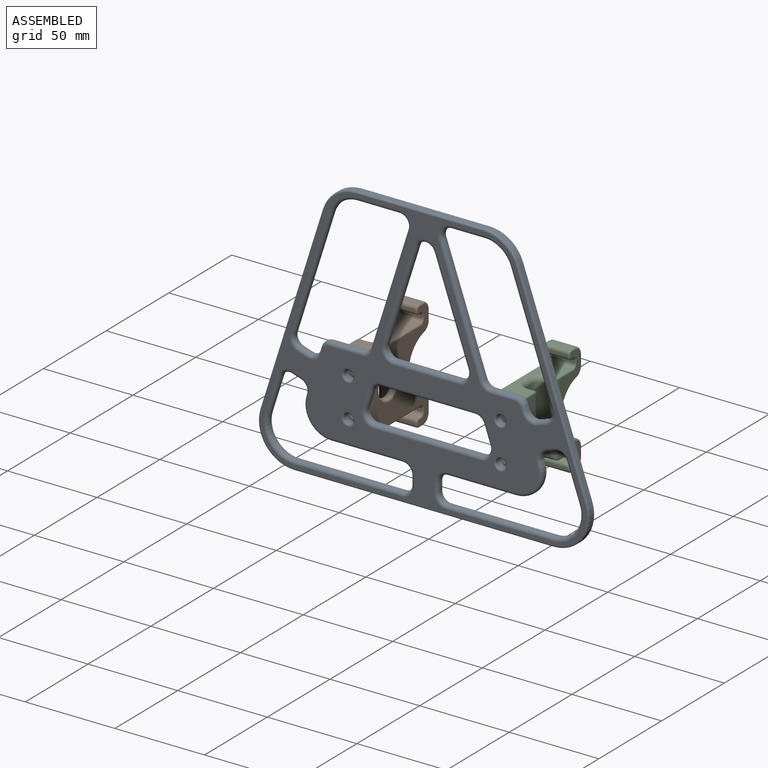
[diagram: assembled view]
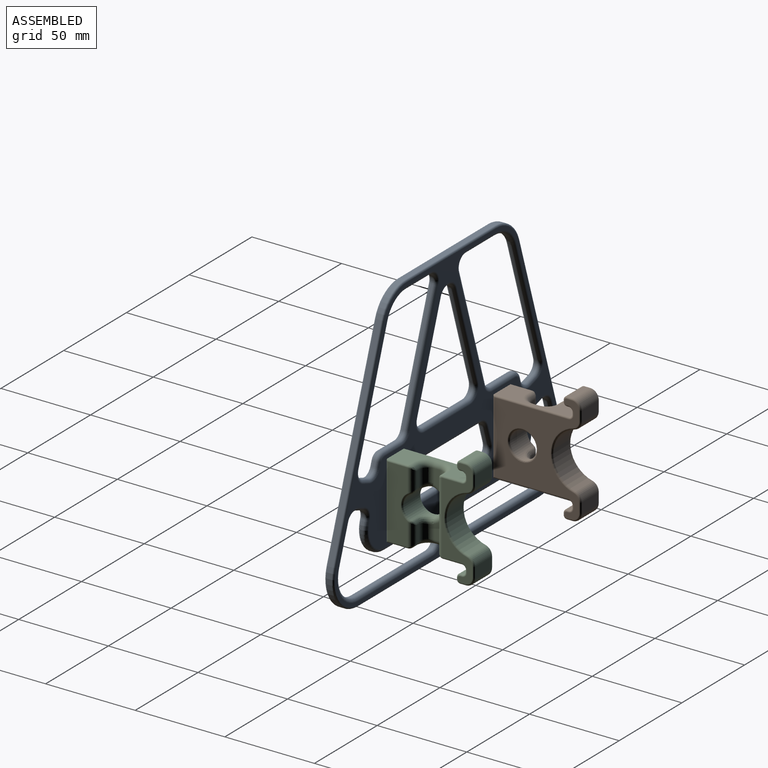
[diagram: assembled view, second angle]
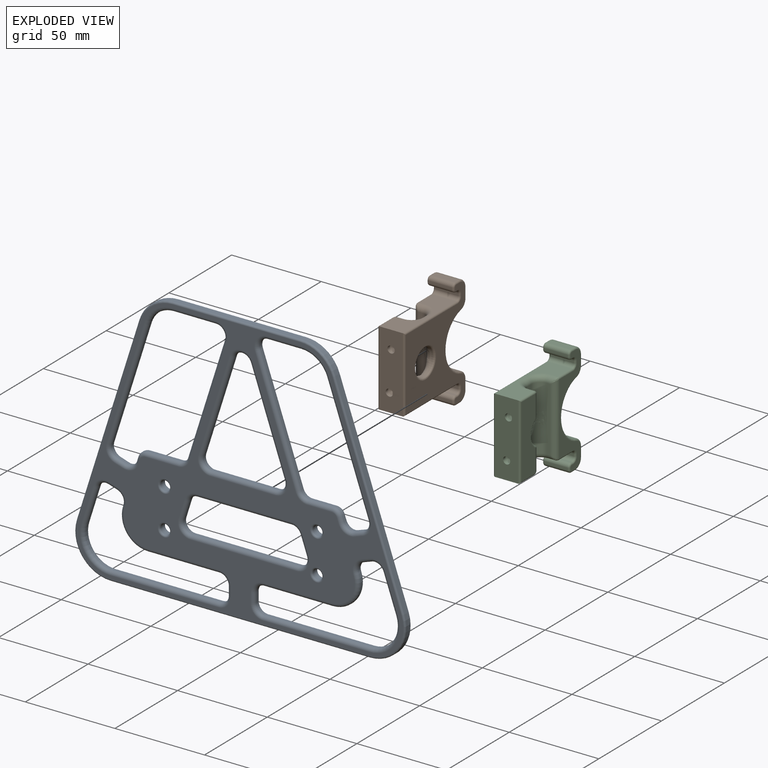
[diagram: exploded view]
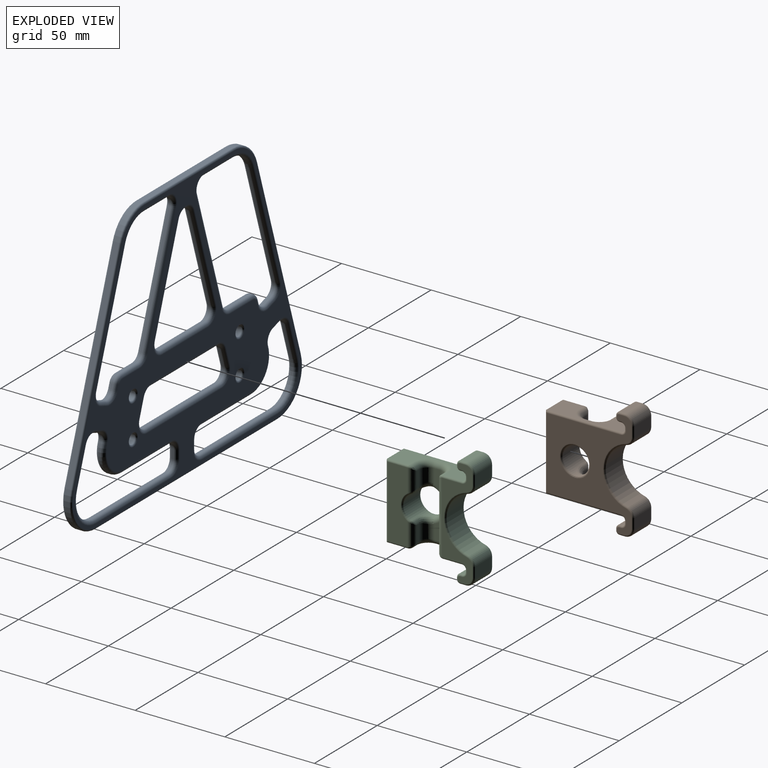
[diagram: exploded view, second angle]
ASSEMBLY  parts=3 mates=2
PART A: 224 faces, bbox 187.8x5x153.3 mm
  f0: plane 182.5x148mm, normal (0,-1,0), area 6279mm2, adj f14,f15,f16,f17,f22,f23,f24,f25
  f1: plane 182.5x148mm, normal (0,1,0), area 6279mm2, adj f10,f11,f12,f13,f18,f19,f20,f21
  f2: plane 110x34.84mm, normal (0.95,0,-0.3), area 346.2mm2, adj f18,f22,f33,f36
  f3: plane 144.5x3mm, normal (0,0,1), area 433.5mm2, adj f19,f23,f30,f33
  f4: plane 110x38.49mm, normal (-0.94,0,-0.33), area 349.6mm2, adj f21,f25,f27,f30
  f5: plane 71.17x3mm, normal (0,0,-1), area 213.5mm2, adj f20,f24,f27,f36
  f6: cylinder r=2.75mm len=5.5mm, axis (0,-1,0), area 51.8mm2, adj f13,f17
  f7: cylinder r=2.75mm len=5.5mm, axis (0,-1,0), area 51.8mm2, adj f12,f14
  f8: cylinder r=2.75mm len=5.5mm, axis (0,-1,0), area 51.8mm2, adj f11,f15
  f9: cylinder r=2.75mm len=5.5mm, axis (0,-1,0), area 51.8mm2, adj f10,f16
  f10: torus R=3.75mm, axis (0,-1,0), area 30.7mm2, adj f1,f9
  f11: torus R=3.75mm, axis (0,-1,0), area 30.7mm2, adj f1,f8
  f12: torus R=3.75mm, axis (0,-1,0), area 30.7mm2, adj f1,f7
  f13: torus R=3.75mm, axis (0,-1,0), area 30.7mm2, adj f1,f6
  f14: torus R=3.75mm, axis (0,-1,0), area 30.7mm2, adj f0,f7
  f15: torus R=3.75mm, axis (0,-1,0), area 30.7mm2, adj f0,f8
  f16: torus R=3.75mm, axis (0,-1,0), area 30.7mm2, adj f0,f9
  f17: torus R=3.75mm, axis (0,-1,0), area 30.7mm2, adj f0,f6
  f18: cylinder r=1mm len=110.3mm, axis (0.3,0,0.95), area 181.2mm2, adj f1,f2,f34,f37
  f19: cylinder r=1mm len=144.5mm, axis (-1,0,0), area 227mm2, adj f1,f3,f31,f34
  f20: cylinder r=1mm len=71.17mm, axis (1,0,0), area 111.8mm2, adj f1,f5,f28,f37
  f21: cylinder r=1mm len=110.33mm, axis (0.33,0,-0.94), area 183.1mm2, adj f1,f4,f28,f31
  f22: cylinder r=1mm len=110.3mm, axis (-0.3,0,-0.95), area 181.2mm2, adj f0,f2,f32,f35
  f23: cylinder r=1mm len=144.5mm, axis (1,0,0), area 227mm2, adj f0,f3,f29,f32
  f24: cylinder r=1mm len=71.17mm, axis (-1,0,0), area 111.8mm2, adj f0,f5,f26,f35
  f25: cylinder r=1mm len=110.33mm, axis (-0.33,0,0.94), area 183.1mm2, adj f0,f4,f26,f29
  f26: torus R=19mm, axis (0,-1,0), area 38.1mm2, adj f0,f24,f25,f27
  f27: cylinder r=20mm len=18.88mm, axis (0,-1,0), area 74.1mm2, adj f4,f5,f26,f28
  f28: torus R=19mm, axis (0,-1,0), area 38.1mm2, adj f1,f20,f21,f27
  f29: torus R=19mm, axis (0,-1,0), area 58.8mm2, adj f0,f23,f25,f30
  f30: cylinder r=20mm len=26.61mm, axis (0,-1,0), area 114.4mm2, adj f3,f4,f29,f31
  f31: torus R=19mm, axis (0,-1,0), area 58.8mm2, adj f1,f19,f21,f30
  f32: torus R=19mm, axis (0,-1,0), area 57.9mm2, adj f0,f22,f23,f33
  f33: cylinder r=20mm len=26.04mm, axis (0,1,0), area 112.7mm2, adj f2,f3,f32,f34
  f34: torus R=19mm, axis (0,-1,0), area 57.9mm2, adj f1,f18,f19,f33
  f35: torus R=19mm, axis (0,-1,0), area 39mm2, adj f0,f22,f24,f36
  f36: cylinder r=20mm len=19.07mm, axis (0,1,0), area 75.8mm2, adj f2,f5,f35,f37
  f37: torus R=19mm, axis (0,-1,0), area 39mm2, adj f1,f18,f20,f36
  f38: cylinder r=5mm len=4.72mm, axis (0,-1,0), area 6.2mm2, adj f39,f49,f161,f221
  f39: plane 2.77x1mm, normal (-0.94,0,-0.33), area 2.9mm2, adj f38,f40,f159,f223
  f40: cylinder r=5mm len=6.37mm, axis (0,-1,0), area 7.9mm2, adj f39,f41,f157,f222
  f41: plane 4.72x1.65mm, normal (0.33,0,-0.94), area 5mm2, adj f40,f42,f155,f220
  f42: cylinder r=5mm len=6.37mm, axis (0,-1,0), area 7.9mm2, adj f41,f43,f153,f218
  f43: plane 66.12x23.14mm, normal (0.94,0,0.33), area 70.1mm2, adj f42,f44,f151,f216
  f44: cylinder r=15mm len=14.16mm, axis (0,-1,0), area 18.5mm2, adj f43,f45,f150,f214
  f45: plane 18.78x1mm, normal (0,0,1), area 18.8mm2, adj f44,f46,f152,f212
  f46: cylinder r=5mm len=6.65mm, axis (0,-1,0), area 9.5mm2, adj f45,f47,f154,f213
  f47: plane 65x22.74mm, normal (-0.94,0,-0.33), area 68.9mm2, adj f46,f48,f156,f215
  f48: cylinder r=5mm len=4.72mm, axis (0,-1,0), area 6.2mm2, adj f47,f49,f158,f217
  f49: plane 13.48x1mm, normal (0,0,-1), area 13.5mm2, adj f38,f48,f160,f219
  f50: cylinder r=5mm len=9.49mm, axis (0,-1,0), area 12.5mm2, adj f51,f55,f149,f165
  f51: plane 54.19x17.16mm, normal (-0.95,0,0.3), area 56.8mm2, adj f50,f52,f148,f167
  f52: cylinder r=5mm len=6.51mm, axis (0,-1,0), area 9.4mm2, adj f51,f53,f146,f166
  f53: plane 36.12x1mm, normal (0,0,-1), area 36.1mm2, adj f52,f54,f144,f164
  f54: cylinder r=5mm len=6.65mm, axis (0,-1,0), area 9.5mm2, adj f53,f55,f145,f162
  f55: plane 54.19x18.96mm, normal (0.94,0,0.33), area 57.4mm2, adj f50,f54,f147,f163
  f56: plane 5x1mm, normal (-1,0,0), area 5mm2, adj f57,f67,f143,f208
  f57: cylinder r=5mm len=5mm, axis (0,-1,0), area 7.9mm2, adj f56,f58,f141,f206
  f58: plane 59.31x1mm, normal (0,0,-1), area 59.3mm2, adj f57,f59,f139,f204
  f59: cylinder r=15mm len=19.95mm, axis (0,-1,0), area 28.6mm2, adj f58,f60,f137,f202
  f60: plane 20.28x7.1mm, normal (0.94,0,0.33), area 21.5mm2, adj f59,f61,f135,f200
  f61: cylinder r=5mm len=6.37mm, axis (0,-1,0), area 7.9mm2, adj f60,f62,f133,f201
  f62: plane 4.72x1.65mm, normal (-0.33,0,0.94), area 5mm2, adj f61,f63,f132,f203
  f63: cylinder r=5mm len=6.37mm, axis (0,-1,0), area 7.9mm2, adj f62,f64,f134,f205
  f64: plane 1x0.33mm, normal (-0.94,0,-0.33), area 0.3mm2, adj f63,f65,f136,f207
  f65: cylinder r=15mm len=19.95mm, axis (0,-1,0), area 28.6mm2, adj f64,f66,f138,f209
  f66: plane 38.17x1mm, normal (0,0,1), area 38.2mm2, adj f65,f67,f140,f211
  f67: cylinder r=5mm len=5mm, axis (0,-1,0), area 7.9mm2, adj f56,f66,f142,f210
  f68: cylinder r=5mm len=5mm, axis (0,-1,0), area 7.9mm2, adj f69,f79,f131,f197
  f69: plane 39.7x1mm, normal (0,0,1), area 39.7mm2, adj f68,f70,f130,f199
  f70: cylinder r=15mm len=19.53mm, axis (0,-1,0), area 28.2mm2, adj f69,f71,f128,f198
  f71: plane 1x0.7mm, normal (0.95,0,-0.3), area 0.7mm2, adj f70,f72,f126,f196
  f72: cylinder r=5mm len=6.28mm, axis (0,-1,0), area 7.9mm2, adj f71,f73,f124,f194
  f73: plane 4.77x1.51mm, normal (0.3,0,0.95), area 5mm2, adj f72,f74,f122,f192
  f74: cylinder r=5mm len=6.28mm, axis (0,-1,0), area 7.9mm2, adj f73,f75,f120,f190
  f75: plane 20.23x6.41mm, normal (-0.95,0,0.3), area 21.2mm2, adj f74,f76,f121,f188
  f76: cylinder r=15mm len=19.53mm, axis (0,-1,0), area 28.2mm2, adj f75,f77,f123,f189
  f77: plane 60.19x1mm, normal (0,0,-1), area 60.2mm2, adj f76,f78,f125,f191
  f78: cylinder r=5mm len=5mm, axis (0,-1,0), area 7.9mm2, adj f77,f79,f127,f193
  f79: plane 5x1mm, normal (1,0,0), area 5mm2, adj f68,f78,f129,f195
  f80: cylinder r=5mm len=6.28mm, axis (0,-1,0), area 7.9mm2, adj f81,f91,f119,f185
  f81: plane 2.44x1mm, normal (0.95,0,-0.3), area 2.6mm2, adj f80,f82,f118,f187
  f82: cylinder r=5mm len=4.77mm, axis (0,-1,0), area 6.3mm2, adj f81,f83,f116,f186
  f83: plane 18.27x1mm, normal (0,0,-1), area 18.3mm2, adj f82,f84,f114,f184
  f84: cylinder r=5mm len=4.77mm, axis (0,-1,0), area 6.3mm2, adj f83,f85,f112,f182
  f85: plane 65x20.59mm, normal (0.95,0,-0.3), area 68.2mm2, adj f84,f86,f110,f180
  f86: cylinder r=5mm len=6.51mm, axis (0,-1,0), area 9.4mm2, adj f85,f87,f108,f178
  f87: plane 23.51x1mm, normal (0,0,1), area 23.5mm2, adj f86,f88,f109,f176
  f88: cylinder r=15mm len=14.3mm, axis (0,-1,0), area 19mm2, adj f87,f89,f111,f177
  f89: plane 65.93x20.88mm, normal (-0.95,0,0.3), area 69.2mm2, adj f88,f90,f113,f179
  f90: cylinder r=5mm len=6.28mm, axis (0,-1,0), area 7.9mm2, adj f89,f91,f115,f181
  f91: plane 4.77x1.51mm, normal (-0.3,0,-0.95), area 5mm2, adj f80,f90,f117,f183
  f92: plane 10x3.5mm, normal (0.94,0,0.33), area 10.6mm2, adj f93,f99,f107,f173
  f93: cylinder r=5mm len=4.72mm, axis (0,-1,0), area 6.2mm2, adj f92,f94,f106,f175
  f94: plane 52.79x1mm, normal (0,0,1), area 52.8mm2, adj f93,f95,f104,f174
  f95: cylinder r=5mm len=4.77mm, axis (0,-1,0), area 6.3mm2, adj f94,f96,f102,f172
  f96: plane 10x3.17mm, normal (-0.95,0,0.3), area 10.5mm2, adj f95,f97,f100,f170
  f97: cylinder r=5mm len=6.51mm, axis (0,-1,0), area 9.4mm2, adj f96,f98,f101,f168
  f98: plane 59.46x1mm, normal (0,0,-1), area 59.5mm2, adj f97,f99,f103,f169
  f99: cylinder r=5mm len=6.65mm, axis (0,-1,0), area 9.5mm2, adj f92,f98,f105,f171
  f100: cylinder r=2mm len=10.6mm, axis (0.3,0,0.95), area 33mm2, adj f1,f96,f101,f102
  f101: torus R=7mm, axis (0,-1,0), area 33.8mm2, adj f1,f97,f100,f103
  f102: torus R=7mm, axis (0,-1,0), area 22.7mm2, adj f1,f95,f100,f104
  f103: cylinder r=2mm len=59.46mm, axis (-1,0,0), area 186.8mm2, adj f1,f98,f101,f105
  f104: cylinder r=2mm len=52.79mm, axis (1,0,0), area 165.8mm2, adj f1,f94,f102,f106
  f105: torus R=7mm, axis (0,-1,0), area 34.3mm2, adj f1,f99,f103,f107
  f106: torus R=7mm, axis (0,-1,0), area 22.2mm2, adj f1,f93,f104,f107
  f107: cylinder r=2mm len=10.66mm, axis (0.33,0,-0.94), area 33.3mm2, adj f1,f92,f105,f106
  f108: torus R=7mm, axis (0,-1,0), area 33.8mm2, adj f1,f86,f109,f110
  f109: cylinder r=2mm len=23.51mm, axis (1,0,0), area 73.9mm2, adj f1,f87,f108,f111
  f110: cylinder r=2mm len=65.6mm, axis (-0.3,0,-0.95), area 214.2mm2, adj f1,f85,f108,f112
  f111: torus R=17mm, axis (0,-1,0), area 62.5mm2, adj f1,f88,f109,f113
  f112: torus R=7mm, axis (0,-1,0), area 22.7mm2, adj f1,f84,f110,f114
  f113: cylinder r=2mm len=66.54mm, axis (0.3,0,0.95), area 217.3mm2, adj f1,f89,f111,f115
  f114: cylinder r=2mm len=18.27mm, axis (-1,0,0), area 57.4mm2, adj f1,f83,f112,f116
  f115: torus R=7mm, axis (0,-1,0), area 28.3mm2, adj f1,f90,f113,f117
  f116: torus R=3mm, axis (0,-1,0), area 17mm2, adj f1,f82,f114,f118
  f117: cylinder r=2mm len=5.37mm, axis (-0.95,0,0.3), area 15.7mm2, adj f1,f91,f115,f119
  f118: cylinder r=2mm len=3.05mm, axis (-0.3,0,-0.95), area 8.1mm2, adj f1,f81,f116,f119
  f119: torus R=7mm, axis (0,-1,0), area 28.3mm2, adj f1,f80,f117,f118
  f120: torus R=7mm, axis (0,-1,0), area 28.3mm2, adj f1,f74,f121,f122
  f121: cylinder r=2mm len=20.84mm, axis (0.3,0,0.95), area 66.7mm2, adj f1,f75,f120,f123
  f122: cylinder r=2mm len=5.37mm, axis (0.95,0,-0.3), area 15.7mm2, adj f1,f73,f120,f124
  f123: torus R=17mm, axis (0,-1,0), area 92.8mm2, adj f1,f76,f121,f125
  f124: torus R=7mm, axis (0,-1,0), area 28.3mm2, adj f1,f72,f122,f126
  f125: cylinder r=2mm len=60.19mm, axis (-1,0,0), area 189.1mm2, adj f1,f77,f123,f127
  f126: cylinder r=2mm len=2.13mm, axis (-0.3,0,-0.95), area 2.3mm2, adj f1,f71,f124,f128
  f127: torus R=7mm, axis (0,-1,0), area 28.3mm2, adj f1,f78,f125,f129
  f128: torus R=13mm, axis (0,-1,0), area 84.2mm2, adj f1,f70,f126,f130
  f129: cylinder r=2mm len=5mm, axis (0,0,-1), area 15.7mm2, adj f1,f79,f127,f131
  f130: cylinder r=2mm len=39.7mm, axis (1,0,0), area 124.7mm2, adj f1,f69,f128,f131
  f131: torus R=7mm, axis (0,-1,0), area 28.3mm2, adj f1,f68,f129,f130
  f132: cylinder r=2mm len=5.38mm, axis (0.94,0,0.33), area 15.7mm2, adj f1,f62,f133,f134
  f133: torus R=7mm, axis (0,-1,0), area 28.3mm2, adj f1,f61,f132,f135
  f134: torus R=7mm, axis (0,-1,0), area 28.3mm2, adj f1,f63,f132,f136
  f135: cylinder r=2mm len=20.94mm, axis (0.33,0,-0.94), area 67.5mm2, adj f1,f60,f133,f137
  f136: cylinder r=2mm len=2mm, axis (-0.33,0,0.94), area 1.1mm2, adj f1,f64,f134,f138
  f137: torus R=17mm, axis (0,-1,0), area 94.2mm2, adj f1,f59,f135,f139
  f138: torus R=13mm, axis (0,-1,0), area 85.5mm2, adj f1,f65,f136,f140
  f139: cylinder r=2mm len=59.31mm, axis (-1,0,0), area 186.3mm2, adj f1,f58,f137,f141
  f140: cylinder r=2mm len=38.17mm, axis (1,0,0), area 119.9mm2, adj f1,f66,f138,f142
  f141: torus R=7mm, axis (0,-1,0), area 28.3mm2, adj f1,f57,f139,f143
  f142: torus R=7mm, axis (0,-1,0), area 28.3mm2, adj f1,f67,f140,f143
  f143: cylinder r=2mm len=5mm, axis (0,0,1), area 15.7mm2, adj f1,f56,f141,f142
  f144: cylinder r=2mm len=36.12mm, axis (-1,0,0), area 113.5mm2, adj f1,f53,f145,f146
  f145: torus R=7mm, axis (0,-1,0), area 34.3mm2, adj f1,f54,f144,f147
  f146: torus R=7mm, axis (0,-1,0), area 33.8mm2, adj f1,f52,f144,f148
  f147: cylinder r=2mm len=54.85mm, axis (0.33,0,-0.94), area 180.4mm2, adj f1,f55,f145,f149
  f148: cylinder r=2mm len=54.79mm, axis (0.3,0,0.95), area 178.6mm2, adj f1,f51,f146,f149
  f149: torus R=7mm, axis (0,-1,0), area 44.9mm2, adj f1,f50,f147,f148
  f150: torus R=17mm, axis (0,-1,0), area 61mm2, adj f1,f44,f151,f152
  f151: cylinder r=2mm len=66.78mm, axis (0.33,0,-0.94), area 220.1mm2, adj f1,f43,f150,f153
  f152: cylinder r=2mm len=18.78mm, axis (1,0,0), area 59mm2, adj f1,f45,f150,f154
  f153: torus R=7mm, axis (0,-1,0), area 28.3mm2, adj f1,f42,f151,f155
  f154: torus R=7mm, axis (0,-1,0), area 34.3mm2, adj f1,f46,f152,f156
  f155: cylinder r=2mm len=5.38mm, axis (-0.94,0,-0.33), area 15.7mm2, adj f1,f41,f153,f157
  f156: cylinder r=2mm len=65.66mm, axis (-0.33,0,0.94), area 216.3mm2, adj f1,f47,f154,f158
  f157: torus R=7mm, axis (0,-1,0), area 28.3mm2, adj f1,f40,f155,f159
  f158: torus R=7mm, axis (0,-1,0), area 22.2mm2, adj f1,f48,f156,f160
  f159: cylinder r=2mm len=3.43mm, axis (-0.33,0,0.94), area 9.2mm2, adj f1,f39,f157,f161
  f160: cylinder r=2mm len=13.48mm, axis (-1,0,0), area 42.3mm2, adj f1,f49,f158,f161
  f161: torus R=3mm, axis (0,-1,0), area 16.6mm2, adj f1,f38,f159,f160
  f162: torus R=7mm, axis (0,-1,0), area 34.3mm2, adj f0,f54,f163,f164
  f163: cylinder r=2mm len=54.85mm, axis (-0.33,0,0.94), area 180.4mm2, adj f0,f55,f162,f165
  f164: cylinder r=2mm len=36.12mm, axis (1,0,0), area 113.5mm2, adj f0,f53,f162,f166
  f165: torus R=7mm, axis (0,-1,0), area 44.9mm2, adj f0,f50,f163,f167
  f166: torus R=7mm, axis (0,-1,0), area 33.8mm2, adj f0,f52,f164,f167
  f167: cylinder r=2mm len=54.79mm, axis (-0.3,0,-0.95), area 178.6mm2, adj f0,f51,f165,f166
  f168: torus R=7mm, axis (0,-1,0), area 33.8mm2, adj f0,f97,f169,f170
  f169: cylinder r=2mm len=59.46mm, axis (1,0,0), area 186.8mm2, adj f0,f98,f168,f171
  f170: cylinder r=2mm len=10.6mm, axis (-0.3,0,-0.95), area 33mm2, adj f0,f96,f168,f172
  f171: torus R=7mm, axis (0,-1,0), area 34.3mm2, adj f0,f99,f169,f173
  f172: torus R=7mm, axis (0,-1,0), area 22.7mm2, adj f0,f95,f170,f174
  f173: cylinder r=2mm len=10.66mm, axis (-0.33,0,0.94), area 33.3mm2, adj f0,f92,f171,f175
  f174: cylinder r=2mm len=52.79mm, axis (-1,0,0), area 165.8mm2, adj f0,f94,f172,f175
  f175: torus R=7mm, axis (0,-1,0), area 22.2mm2, adj f0,f93,f173,f174
  f176: cylinder r=2mm len=23.51mm, axis (-1,0,0), area 73.9mm2, adj f0,f87,f177,f178
  f177: torus R=17mm, axis (0,-1,0), area 62.5mm2, adj f0,f88,f176,f179
  f178: torus R=7mm, axis (0,-1,0), area 33.8mm2, adj f0,f86,f176,f180
  f179: cylinder r=2mm len=66.54mm, axis (-0.3,0,-0.95), area 217.3mm2, adj f0,f89,f177,f181
  f180: cylinder r=2mm len=65.6mm, axis (0.3,0,0.95), area 214.2mm2, adj f0,f85,f178,f182
  f181: torus R=7mm, axis (0,-1,0), area 28.3mm2, adj f0,f90,f179,f183
  f182: torus R=7mm, axis (0,-1,0), area 22.7mm2, adj f0,f84,f180,f184
  f183: cylinder r=2mm len=5.37mm, axis (0.95,0,-0.3), area 15.7mm2, adj f0,f91,f181,f185
  f184: cylinder r=2mm len=18.27mm, axis (1,0,0), area 57.4mm2, adj f0,f83,f182,f186
  f185: torus R=7mm, axis (0,-1,0), area 28.3mm2, adj f0,f80,f183,f187
  f186: torus R=3mm, axis (0,-1,0), area 17mm2, adj f0,f82,f184,f187
  f187: cylinder r=2mm len=3.05mm, axis (0.3,0,0.95), area 8.1mm2, adj f0,f81,f185,f186
  f188: cylinder r=2mm len=20.84mm, axis (-0.3,0,-0.95), area 66.7mm2, adj f0,f75,f189,f190
  f189: torus R=17mm, axis (0,-1,0), area 92.8mm2, adj f0,f76,f188,f191
  f190: torus R=7mm, axis (0,-1,0), area 28.3mm2, adj f0,f74,f188,f192
  f191: cylinder r=2mm len=60.19mm, axis (1,0,0), area 189.1mm2, adj f0,f77,f189,f193
  f192: cylinder r=2mm len=5.37mm, axis (-0.95,0,0.3), area 15.7mm2, adj f0,f73,f190,f194
  f193: torus R=7mm, axis (0,-1,0), area 28.3mm2, adj f0,f78,f191,f195
  f194: torus R=7mm, axis (0,-1,0), area 28.3mm2, adj f0,f72,f192,f196
  f195: cylinder r=2mm len=5mm, axis (0,0,1), area 15.7mm2, adj f0,f79,f193,f197
  f196: cylinder r=2mm len=2.13mm, axis (0.3,0,0.95), area 2.3mm2, adj f0,f71,f194,f198
  f197: torus R=7mm, axis (0,-1,0), area 28.3mm2, adj f0,f68,f195,f199
  f198: torus R=13mm, axis (0,-1,0), area 84.2mm2, adj f0,f70,f196,f199
  f199: cylinder r=2mm len=39.7mm, axis (-1,0,0), area 124.7mm2, adj f0,f69,f197,f198
  f200: cylinder r=2mm len=20.94mm, axis (-0.33,0,0.94), area 67.5mm2, adj f0,f60,f201,f202
  f201: torus R=7mm, axis (0,-1,0), area 28.3mm2, adj f0,f61,f200,f203
  f202: torus R=17mm, axis (0,-1,0), area 94.2mm2, adj f0,f59,f200,f204
  f203: cylinder r=2mm len=5.38mm, axis (-0.94,0,-0.33), area 15.7mm2, adj f0,f62,f201,f205
  f204: cylinder r=2mm len=59.31mm, axis (1,0,0), area 186.3mm2, adj f0,f58,f202,f206
  f205: torus R=7mm, axis (0,-1,0), area 28.3mm2, adj f0,f63,f203,f207
  f206: torus R=7mm, axis (0,-1,0), area 28.3mm2, adj f0,f57,f204,f208
  f207: cylinder r=2mm len=2mm, axis (0.33,0,-0.94), area 1.1mm2, adj f0,f64,f205,f209
  f208: cylinder r=2mm len=5mm, axis (0,0,-1), area 15.7mm2, adj f0,f56,f206,f210
  f209: torus R=13mm, axis (0,-1,0), area 85.5mm2, adj f0,f65,f207,f211
  f210: torus R=7mm, axis (0,-1,0), area 28.3mm2, adj f0,f67,f208,f211
  f211: cylinder r=2mm len=38.17mm, axis (-1,0,0), area 119.9mm2, adj f0,f66,f209,f210
  f212: cylinder r=2mm len=18.78mm, axis (-1,0,0), area 59mm2, adj f0,f45,f213,f214
  f213: torus R=7mm, axis (0,-1,0), area 34.3mm2, adj f0,f46,f212,f215
  f214: torus R=17mm, axis (0,-1,0), area 61mm2, adj f0,f44,f212,f216
  f215: cylinder r=2mm len=65.66mm, axis (0.33,0,-0.94), area 216.3mm2, adj f0,f47,f213,f217
  f216: cylinder r=2mm len=66.78mm, axis (-0.33,0,0.94), area 220.1mm2, adj f0,f43,f214,f218
  f217: torus R=7mm, axis (0,-1,0), area 22.2mm2, adj f0,f48,f215,f219
  f218: torus R=7mm, axis (0,-1,0), area 28.3mm2, adj f0,f42,f216,f220
  f219: cylinder r=2mm len=13.48mm, axis (1,0,0), area 42.3mm2, adj f0,f49,f217,f221
  f220: cylinder r=2mm len=5.38mm, axis (0.94,0,0.33), area 15.7mm2, adj f0,f41,f218,f222
  f221: torus R=3mm, axis (0,-1,0), area 16.6mm2, adj f0,f38,f219,f223
  f222: torus R=7mm, axis (0,-1,0), area 28.3mm2, adj f0,f40,f220,f223
  f223: cylinder r=2mm len=3.43mm, axis (0.33,0,-0.94), area 9.2mm2, adj f0,f39,f221,f222
PART B: 130 faces, bbox 16x49.6x62.8 mm
  f0: plane 9.87x3.3mm, normal (-1,0,0), area 29.1mm2, adj f95,f97,f108,f126
  f1: plane 40x11mm, normal (-1,0,0), area 401.4mm2, adj f52,f54,f56,f85,f116,f117
  f2: cylinder r=1mm len=10.9mm, axis (0,-1,0), area 17.1mm2, adj f4,f9,f50,f101
  f3: cylinder r=1mm len=10.9mm, axis (0,1,0), area 17.1mm2, adj f4,f8,f58,f102
  f4: plane 60x16.9mm, normal (-1,0,0), area 346.7mm2, adj f2,f3,f33,f34,f35,f36,f37,f38
  f5: cylinder r=15.9mm len=30.88mm, axis (1,0,0), area 549.5mm2, adj f21,f22,f37,f62
  f6: plane 42x13mm, normal (0,-1,0), area 520.9mm2, adj f8,f9,f54,f81,f88,f90
  f7: plane 60x47.2mm, normal (1,0,0), area 1331.8mm2, adj f59,f60,f61,f62,f63,f64,f65,f66
  f8: plane 42.2x13mm, normal (0,0,1), area 344.5mm2, adj f3,f6,f32,f56,f83,f104,f106,f108
  f9: plane 42.2x13mm, normal (0,0,-1), area 344.5mm2, adj f2,f6,f27,f52,f79,f103,f105,f107
  f10: plane 13x5.71mm, normal (0,1,0), area 74.2mm2, adj f21,f24,f41,f66
  f11: plane 13x3mm, normal (0,0,1), area 39mm2, adj f24,f29,f45,f70
  f12: plane 13x1mm, normal (0,-1,0), area 13mm2, adj f29,f30,f49,f74
  f13: plane 13x1mm, normal (0,0,-1), area 13mm2, adj f30,f31,f53,f78
  f14: plane 13x1mm, normal (0,-1,0), area 13mm2, adj f31,f32,f57,f82
  f15: plane 13x5.71mm, normal (0,1,0), area 74.2mm2, adj f22,f23,f33,f59
  f16: plane 13x3mm, normal (0,0,-1), area 39mm2, adj f23,f25,f36,f63
  f17: plane 13x1mm, normal (0,-1,0), area 13mm2, adj f25,f28,f40,f67
  f18: plane 13x1mm, normal (0,0,1), area 13mm2, adj f26,f28,f44,f71
  f19: plane 13x1mm, normal (0,-1,0), area 13mm2, adj f26,f27,f48,f75
  f20: cylinder r=7.5mm len=15mm, axis (1,0,0), area 274.1mm2, adj f85,f86,f115,f118,f121,f122,f123,f124
  f21: cylinder r=5mm len=13mm, axis (1,0,0), area 86.4mm2, adj f5,f10,f39,f64
  f22: cylinder r=5mm len=13mm, axis (1,0,0), area 86.4mm2, adj f5,f15,f35,f60
  f23: cylinder r=5mm len=13mm, axis (1,0,0), area 102.1mm2, adj f15,f16,f34,f61
  f24: cylinder r=5mm len=13mm, axis (1,0,0), area 102.1mm2, adj f10,f11,f43,f68
  f25: cylinder r=2mm len=13mm, axis (1,0,0), area 40.8mm2, adj f16,f17,f38,f65
  f26: cylinder r=2mm len=13mm, axis (-1,0,0), area 40.8mm2, adj f18,f19,f46,f73
  f27: cylinder r=2mm len=13mm, axis (1,0,0), area 40.8mm2, adj f9,f19,f50,f77
  f28: cylinder r=2mm len=13mm, axis (1,0,0), area 40.8mm2, adj f17,f18,f42,f69
  f29: cylinder r=2mm len=13mm, axis (1,0,0), area 40.8mm2, adj f11,f12,f47,f72
  f30: cylinder r=2mm len=13mm, axis (1,0,0), area 40.8mm2, adj f12,f13,f51,f76
  f31: cylinder r=2mm len=13mm, axis (-1,0,0), area 40.8mm2, adj f13,f14,f55,f80
  f32: cylinder r=2mm len=13mm, axis (-1,0,0), area 40.8mm2, adj f8,f14,f58,f84
  f33: cylinder r=1mm len=5.71mm, axis (0,0,1), area 9mm2, adj f4,f15,f34,f35
  f34: torus R=4mm, axis (1,0,0), area 11.4mm2, adj f4,f23,f33,f36
  f35: torus R=4mm, axis (1,0,0), area 9.7mm2, adj f4,f22,f33,f37
  f36: cylinder r=1mm len=3mm, axis (0,1,0), area 4.7mm2, adj f4,f16,f34,f38
  f37: torus R=16.9mm, axis (1,0,0), area 67.9mm2, adj f4,f5,f35,f39
  f38: torus R=1mm, axis (1,0,0), area 4mm2, adj f4,f25,f36,f40
  f39: torus R=4mm, axis (1,0,0), area 9.7mm2, adj f4,f21,f37,f41
  f40: cylinder r=1mm len=1mm, axis (0,0,-1), area 1.6mm2, adj f4,f17,f38,f42
  f41: cylinder r=1mm len=5.71mm, axis (0,0,-1), area 9mm2, adj f4,f10,f39,f43
  f42: torus R=1mm, axis (1,0,0), area 4mm2, adj f4,f28,f40,f44
  f43: torus R=4mm, axis (1,0,0), area 11.4mm2, adj f4,f24,f41,f45
  f44: cylinder r=1mm len=1mm, axis (0,-1,0), area 1.6mm2, adj f4,f18,f42,f46
  f45: cylinder r=1mm len=3mm, axis (0,1,0), area 4.7mm2, adj f4,f11,f43,f47
  f46: torus R=3mm, axis (1,0,0), area 5.8mm2, adj f4,f26,f44,f48
  f47: torus R=1mm, axis (1,0,0), area 4mm2, adj f4,f29,f45,f49
  f48: cylinder r=1mm len=1mm, axis (0,0,-1), area 1.6mm2, adj f4,f19,f46,f50
  f49: cylinder r=1mm len=1mm, axis (0,0,1), area 1.6mm2, adj f4,f12,f47,f51
  f50: torus R=3mm, axis (1,0,0), area 5.8mm2, adj f2,f4,f27,f48
  f51: torus R=1mm, axis (1,0,0), area 4mm2, adj f4,f30,f49,f53
  f52: cylinder r=1mm len=12mm, axis (0,-1,0), area 18.1mm2, adj f1,f9,f54,f113
  f53: cylinder r=1mm len=1mm, axis (0,-1,0), area 1.6mm2, adj f4,f13,f51,f55
  f54: cylinder r=1mm len=42mm, axis (0,0,1), area 64.4mm2, adj f1,f6,f52,f56
  f55: torus R=3mm, axis (1,0,0), area 5.8mm2, adj f4,f31,f53,f57
  f56: cylinder r=1mm len=12mm, axis (0,1,0), area 18.1mm2, adj f1,f8,f54,f114
  f57: cylinder r=1mm len=1mm, axis (0,0,1), area 1.6mm2, adj f4,f14,f55,f58
  f58: torus R=3mm, axis (1,0,0), area 5.8mm2, adj f3,f4,f32,f57
  f59: cylinder r=1mm len=5.71mm, axis (0,0,1), area 9mm2, adj f7,f15,f60,f61
  f60: torus R=4mm, axis (-1,0,0), area 9.7mm2, adj f7,f22,f59,f62
  f61: torus R=4mm, axis (-1,0,0), area 11.4mm2, adj f7,f23,f59,f63
  f62: torus R=16.9mm, axis (-1,0,0), area 67.9mm2, adj f5,f7,f60,f64
  f63: cylinder r=1mm len=3mm, axis (0,1,0), area 4.7mm2, adj f7,f16,f61,f65
  f64: torus R=4mm, axis (-1,0,0), area 9.7mm2, adj f7,f21,f62,f66
  f65: torus R=1mm, axis (-1,0,0), area 4mm2, adj f7,f25,f63,f67
  f66: cylinder r=1mm len=5.71mm, axis (0,0,-1), area 9mm2, adj f7,f10,f64,f68
  f67: cylinder r=1mm len=1mm, axis (0,0,-1), area 1.6mm2, adj f7,f17,f65,f69
  f68: torus R=4mm, axis (-1,0,0), area 11.4mm2, adj f7,f24,f66,f70
  f69: torus R=1mm, axis (-1,0,0), area 4mm2, adj f7,f28,f67,f71
  f70: cylinder r=1mm len=3mm, axis (0,1,0), area 4.7mm2, adj f7,f11,f68,f72
  f71: cylinder r=1mm len=1mm, axis (0,-1,0), area 1.6mm2, adj f7,f18,f69,f73
  f72: torus R=1mm, axis (-1,0,0), area 4mm2, adj f7,f29,f70,f74
  f73: torus R=3mm, axis (-1,0,0), area 5.8mm2, adj f7,f26,f71,f75
  f74: cylinder r=1mm len=1mm, axis (0,0,1), area 1.6mm2, adj f7,f12,f72,f76
  f75: cylinder r=1mm len=1mm, axis (0,0,-1), area 1.6mm2, adj f7,f19,f73,f77
  f76: torus R=1mm, axis (-1,0,0), area 4mm2, adj f7,f30,f74,f78
  f77: torus R=3mm, axis (-1,0,0), area 5.8mm2, adj f7,f27,f75,f79
  f78: cylinder r=1mm len=1mm, axis (0,-1,0), area 1.6mm2, adj f7,f13,f76,f80
  f79: cylinder r=1mm len=42.2mm, axis (0,1,0), area 65.5mm2, adj f7,f9,f77,f81
  f80: torus R=3mm, axis (-1,0,0), area 5.8mm2, adj f7,f31,f78,f82
  f81: cylinder r=1mm len=42mm, axis (0,0,1), area 64.4mm2, adj f6,f7,f79,f83
  f82: cylinder r=1mm len=1mm, axis (0,0,1), area 1.6mm2, adj f7,f14,f80,f84
  f83: cylinder r=1mm len=42.2mm, axis (0,-1,0), area 65.5mm2, adj f7,f8,f81,f84
  f84: torus R=3mm, axis (-1,0,0), area 5.8mm2, adj f7,f32,f82,f83
  f85: torus R=8.5mm, axis (1,0,0), area 24.5mm2, adj f1,f20,f115,f118
  f86: torus R=8.5mm, axis (-1,0,0), area 77.6mm2, adj f7,f20
  f87: cone r=0mm half-angle=59deg, axis (0,-1,0), area 14.7mm2, adj f88
  f88: cylinder r=2mm len=4mm, axis (0,-1,0), area 25.1mm2, adj f6,f87
  f89: cone r=0mm half-angle=59deg, axis (0,-1,0), area 14.7mm2, adj f90
  f90: cylinder r=2mm len=4mm, axis (0,-1,0), area 25.1mm2, adj f6,f89
  f91: plane 9.87x3.3mm, normal (-1,0,0), area 29.1mm2, adj f96,f99,f107,f125
  f92: plane 36x2.07mm, normal (0,-1,0), area 72.3mm2, adj f97,f98,f99,f100,f103,f104
  f93: plane 8.59x2mm, normal (0,1,0), area 17.2mm2, adj f96,f111,f116,f121
  f94: plane 8.59x2mm, normal (0,1,0), area 17.2mm2, adj f95,f112,f117,f122
  f95: cylinder r=5mm len=8.59mm, axis (0,0,-1), area 65.3mm2, adj f0,f94,f110,f124
  f96: cylinder r=5mm len=8.59mm, axis (0,0,-1), area 65.3mm2, adj f91,f93,f109,f123
  f97: cylinder r=5mm len=14.53mm, axis (0,0,1), area 109.2mm2, adj f0,f92,f98,f106,f128
  f98: bspline ~9.15x5.56mm, area 37mm2, adj f92,f97,f99,f129
  f99: cylinder r=5mm len=14.53mm, axis (0,0,1), area 109.2mm2, adj f91,f92,f98,f105,f127
  f100: cylinder r=3mm len=40mm, axis (0,0,-1), area 179.1mm2, adj f4,f92,f101,f102
  f101: bspline ~3.13x3mm, area 3.2mm2, adj f2,f100,f103
  f102: bspline ~3.13x3mm, area 3.2mm2, adj f3,f100,f104
  f103: cylinder r=3mm len=4mm, axis (-1,0,0), area 14.1mm2, adj f9,f92,f101,f105
  f104: cylinder r=3mm len=4mm, axis (1,0,0), area 14.1mm2, adj f8,f92,f102,f106
  f105: torus R=8mm, axis (0,0,1), area 45.1mm2, adj f9,f99,f103,f107
  f106: torus R=8mm, axis (0,0,1), area 45.1mm2, adj f8,f97,f104,f108
  f107: cylinder r=3mm len=3.3mm, axis (0,1,0), area 15.6mm2, adj f9,f91,f105,f109
  f108: cylinder r=3mm len=3.3mm, axis (0,-1,0), area 15.6mm2, adj f0,f8,f106,f110
  f109: torus R=8mm, axis (0,0,1), area 45.1mm2, adj f9,f96,f107,f111
  f110: torus R=8mm, axis (0,0,1), area 45.1mm2, adj f8,f95,f108,f112
  f111: cylinder r=3mm len=4mm, axis (1,0,0), area 14.1mm2, adj f9,f93,f109,f113
  f112: cylinder r=3mm len=4mm, axis (-1,0,0), area 14.1mm2, adj f8,f94,f110,f114
  f113: bspline ~3.13x3mm, area 3.2mm2, adj f52,f111,f116
  f114: bspline ~3.13x3mm, area 3.2mm2, adj f56,f112,f117
  f115: bspline ~2.76x1.96mm, area 1.8mm2, adj f20,f85,f116,f119
  f116: cylinder r=3mm len=12.88mm, axis (0,0,1), area 51mm2, adj f1,f93,f113,f115,f119
  f117: cylinder r=3mm len=12.88mm, axis (0,0,1), area 51mm2, adj f1,f94,f114,f118,f120
  f118: bspline ~2.76x1.96mm, area 1.8mm2, adj f20,f85,f117,f120
  f119: bspline ~2.81x2.81mm, area 1.8mm2, adj f115,f116,f121
  f120: bspline ~2.81x2.81mm, area 1.8mm2, adj f117,f118,f122
  f121: cylinder r=3mm len=3.79mm, axis (1,0,0), area 9.7mm2, adj f20,f93,f119,f123
  f122: cylinder r=3mm len=3.79mm, axis (1,0,0), area 9.7mm2, adj f20,f94,f120,f124
  f123: bspline ~9.7x7.7mm, area 35.9mm2, adj f20,f96,f121,f125
  f124: bspline ~9.7x7.7mm, area 35.9mm2, adj f20,f95,f122,f126
  f125: torus R=10.5mm, axis (1,0,0), area 14.6mm2, adj f20,f91,f123,f127
  f126: torus R=10.5mm, axis (1,0,0), area 14.6mm2, adj f0,f20,f124,f128
  f127: bspline ~8.06x5.2mm, area 17.9mm2, adj f20,f99,f125,f129
  f128: bspline ~8.06x5.2mm, area 17.9mm2, adj f20,f97,f126,f129
  f129: bspline ~7.69x2.9mm, area 19.5mm2, adj f20,f98,f127,f128
PART C: same geometry as B
PLACE A rot(axis=(0,1,0),180deg) t=(84.3,73.9,-22)mm
PLACE B t=(-0.7,73.9,-22)mm
PLACE C rot(axis=(0,1,0),180deg) t=(169.3,73.9,-22)mm
MATE cylindrical B.f89 <-> A.f9  axis (0,-1,0) through (41.8,73.9,-11)mm
MATE cylindrical A.f8 <-> C.f89  axis (0,1,0) through (126.8,73.9,-33)mm
